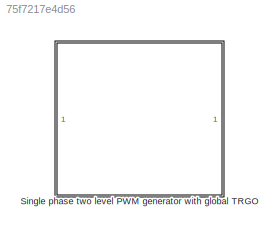
MODEL slx_75f7217e4d56
KIND library
CONFIG AbsTol = auto
CONFIG EnableMultiTasking = off
CONFIG FixedStep = auto
CONFIG MaxStep = auto
CONFIG MinStep = auto
CONFIG RelTol = 1e-3
CONFIG SampleTimeConstraint = Unconstrained
CONFIG SolverName = VariableStepAuto
CONFIG StartTime = 0.0
CONFIG StopTime = 10.0
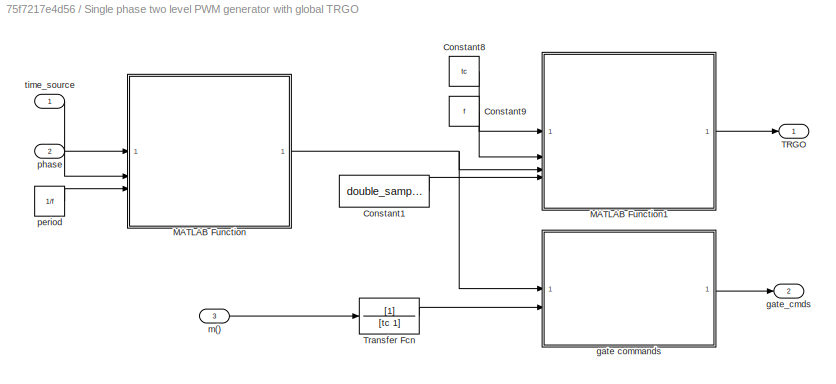
BLOCK [SubSystem] Single phase two level PWM generator with global TRGO
BLOCK [Constant] Single phase two level PWM generator with global TRGO/Constant1
  Value = double_sampling
BLOCK [Constant] Single phase two level PWM generator with global TRGO/Constant8
  Value = tc
BLOCK [Constant] Single phase two level PWM generator with global TRGO/Constant9
  Value = f
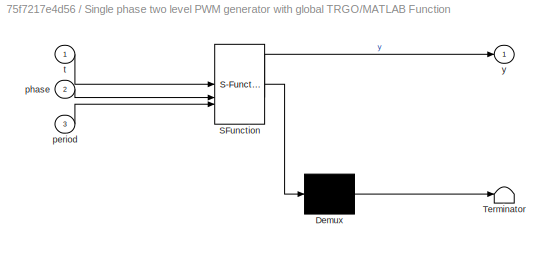
BLOCK [SubSystem] Single phase two level PWM generator with global TRGO/MATLAB Function
  ErrorFcn = Stateflow.Translate.translate
  PermitHierarchicalResolution = ExplicitOnly
  SFBlockType = MATLAB Function
  SystemSampleTime = tc
  TreatAsAtomicUnit = on
BLOCK [Demux] Single phase two level PWM generator with global TRGO/MATLAB Function/ Demux 
  Outputs = 1
BLOCK [S-Function] Single phase two level PWM generator with global TRGO/MATLAB Function/ SFunction 
  EnableBusSupport = off
  FunctionName = sf_sfun
  PortCounts = [3 2]
  SFcnIsStateOwnerBlock = off
  SFunctionDeploymentMode = off
  Tag = Stateflow S-Function 46
BLOCK [Terminator] Single phase two level PWM generator with global TRGO/MATLAB Function/ Terminator 
BLOCK [Inport] Single phase two level PWM generator with global TRGO/MATLAB Function/period
  Port = 3
BLOCK [Inport] Single phase two level PWM generator with global TRGO/MATLAB Function/phase
  Port = 2
BLOCK [Inport] Single phase two level PWM generator with global TRGO/MATLAB Function/t
BLOCK [Outport] Single phase two level PWM generator with global TRGO/MATLAB Function/y
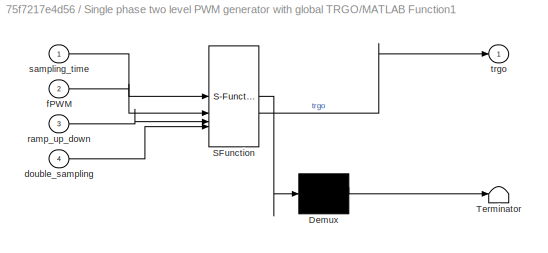
BLOCK [SubSystem] Single phase two level PWM generator with global TRGO/MATLAB Function1
  ErrorFcn = Stateflow.Translate.translate
  PermitHierarchicalResolution = ExplicitOnly
  SFBlockType = MATLAB Function
  SystemSampleTime = tc
  TreatAsAtomicUnit = on
BLOCK [Demux] Single phase two level PWM generator with global TRGO/MATLAB Function1/ Demux 
  Outputs = 1
BLOCK [S-Function] Single phase two level PWM generator with global TRGO/MATLAB Function1/ SFunction 
  EnableBusSupport = off
  FunctionName = sf_sfun
  PortCounts = [4 2]
  SFcnIsStateOwnerBlock = off
  SFunctionDeploymentMode = off
  Tag = Stateflow S-Function 1
BLOCK [Terminator] Single phase two level PWM generator with global TRGO/MATLAB Function1/ Terminator 
BLOCK [Inport] Single phase two level PWM generator with global TRGO/MATLAB Function1/double_sampling
  Port = 4
BLOCK [Inport] Single phase two level PWM generator with global TRGO/MATLAB Function1/fPWM
  Port = 2
BLOCK [Inport] Single phase two level PWM generator with global TRGO/MATLAB Function1/ramp_up_down
  Port = 3
BLOCK [Inport] Single phase two level PWM generator with global TRGO/MATLAB Function1/sampling_time
BLOCK [Outport] Single phase two level PWM generator with global TRGO/MATLAB Function1/trgo
BLOCK [Outport] Single phase two level PWM generator with global TRGO/TRGO
BLOCK [TransferFcn] Single phase two level PWM generator with global TRGO/Transfer Fcn
  Denominator = [tc 1]
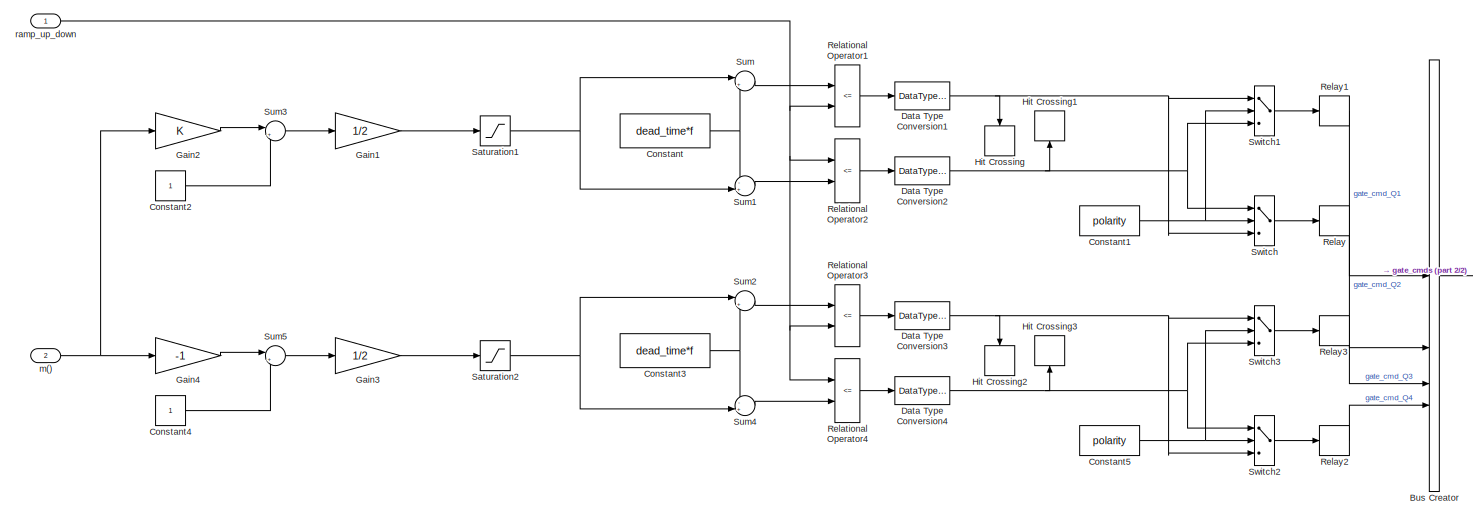
[diagram: Single phase two level PWM generator with global TRGO/gate commands - part 1/2, most of the canvas]
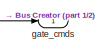
[diagram: Single phase two level PWM generator with global TRGO/gate commands - part 2/2, middle right region]
BLOCK [SubSystem] Single phase two level PWM generator with global TRGO/gate commands
BLOCK [BusCreator] Single phase two level PWM generator with global TRGO/gate commands/Bus Creator
  DisplayOption = bar
  InheritFromInputs = on
  Inputs = 4
BLOCK [Constant] Single phase two level PWM generator with global TRGO/gate commands/Constant
  Value = dead_time*f
BLOCK [Constant] Single phase two level PWM generator with global TRGO/gate commands/Constant1
  Value = polarity
BLOCK [Constant] Single phase two level PWM generator with global TRGO/gate commands/Constant2
BLOCK [Constant] Single phase two level PWM generator with global TRGO/gate commands/Constant3
  Value = dead_time*f
BLOCK [Constant] Single phase two level PWM generator with global TRGO/gate commands/Constant4
BLOCK [Constant] Single phase two level PWM generator with global TRGO/gate commands/Constant5
  Value = polarity
BLOCK [DataTypeConversion] Single phase two level PWM generator with global TRGO/gate commands/Data Type Conversion1
BLOCK [DataTypeConversion] Single phase two level PWM generator with global TRGO/gate commands/Data Type Conversion2
BLOCK [DataTypeConversion] Single phase two level PWM generator with global TRGO/gate commands/Data Type Conversion3
BLOCK [DataTypeConversion] Single phase two level PWM generator with global TRGO/gate commands/Data Type Conversion4
BLOCK [Gain] Single phase two level PWM generator with global TRGO/gate commands/Gain1
  Gain = 1/2
BLOCK [Gain] Single phase two level PWM generator with global TRGO/gate commands/Gain2
BLOCK [Gain] Single phase two level PWM generator with global TRGO/gate commands/Gain3
  Gain = 1/2
BLOCK [Gain] Single phase two level PWM generator with global TRGO/gate commands/Gain4
  Gain = -1
BLOCK [HitCross] Single phase two level PWM generator with global TRGO/gate commands/Hit Crossing
  NameLocation = left
  ShowOutputPort = off
BLOCK [HitCross] Single phase two level PWM generator with global TRGO/gate commands/Hit Crossing1
  NameLocation = right
  ShowOutputPort = off
BLOCK [HitCross] Single phase two level PWM generator with global TRGO/gate commands/Hit Crossing2
  NameLocation = left
  ShowOutputPort = off
BLOCK [HitCross] Single phase two level PWM generator with global TRGO/gate commands/Hit Crossing3
  NameLocation = right
  ShowOutputPort = off
BLOCK [RelationalOperator] Single phase two level PWM generator with global TRGO/gate commands/Relational Operator1
  InputSameDT = off
  Operator = <=
BLOCK [RelationalOperator] Single phase two level PWM generator with global TRGO/gate commands/Relational Operator2
  InputSameDT = off
  Operator = <=
BLOCK [RelationalOperator] Single phase two level PWM generator with global TRGO/gate commands/Relational Operator3
  InputSameDT = off
  Operator = <=
BLOCK [RelationalOperator] Single phase two level PWM generator with global TRGO/gate commands/Relational Operator4
  InputSameDT = off
  Operator = <=
BLOCK [Relay] Single phase two level PWM generator with global TRGO/gate commands/Relay
  OffOutputValue = neg_cmd_gate
  OnOutputValue = pos_cmd_gate
BLOCK [Relay] Single phase two level PWM generator with global TRGO/gate commands/Relay1
  OffOutputValue = neg_cmd_gate
  OnOutputValue = pos_cmd_gate
BLOCK [Relay] Single phase two level PWM generator with global TRGO/gate commands/Relay2
  OffOutputValue = neg_cmd_gate
  OnOutputValue = pos_cmd_gate
BLOCK [Relay] Single phase two level PWM generator with global TRGO/gate commands/Relay3
  OffOutputValue = neg_cmd_gate
  OnOutputValue = pos_cmd_gate
BLOCK [Saturate] Single phase two level PWM generator with global TRGO/gate commands/Saturation1
  LowerLimit = m_low
  UpperLimit = m_up
BLOCK [Saturate] Single phase two level PWM generator with global TRGO/gate commands/Saturation2
  LowerLimit = m_low
  UpperLimit = m_up
BLOCK [Sum] Single phase two level PWM generator with global TRGO/gate commands/Sum
  Inputs = |++
  SaturateOnIntegerOverflow = on
BLOCK [Sum] Single phase two level PWM generator with global TRGO/gate commands/Sum1
  Inputs = -+|
  SaturateOnIntegerOverflow = on
BLOCK [Sum] Single phase two level PWM generator with global TRGO/gate commands/Sum2
  Inputs = |++
  SaturateOnIntegerOverflow = on
BLOCK [Sum] Single phase two level PWM generator with global TRGO/gate commands/Sum3
  Inputs = |++
BLOCK [Sum] Single phase two level PWM generator with global TRGO/gate commands/Sum4
  Inputs = -+|
  SaturateOnIntegerOverflow = on
BLOCK [Sum] Single phase two level PWM generator with global TRGO/gate commands/Sum5
  Inputs = |++
BLOCK [Switch] Single phase two level PWM generator with global TRGO/gate commands/Switch
  Criteria = u2 > Threshold
  InputSameDT = off
  SaturateOnIntegerOverflow = off
BLOCK [Switch] Single phase two level PWM generator with global TRGO/gate commands/Switch1
  Criteria = u2 > Threshold
  InputSameDT = off
  SaturateOnIntegerOverflow = off
BLOCK [Switch] Single phase two level PWM generator with global TRGO/gate commands/Switch2
  Criteria = u2 > Threshold
  InputSameDT = off
  SaturateOnIntegerOverflow = off
BLOCK [Switch] Single phase two level PWM generator with global TRGO/gate commands/Switch3
  Criteria = u2 > Threshold
  InputSameDT = off
  SaturateOnIntegerOverflow = off
BLOCK [Outport] Single phase two level PWM generator with global TRGO/gate commands/gate_cmds
BLOCK [Inport] Single phase two level PWM generator with global TRGO/gate commands/m()
  Port = 2
BLOCK [Inport] Single phase two level PWM generator with global TRGO/gate commands/ramp_up_down
BLOCK [Outport] Single phase two level PWM generator with global TRGO/gate_cmds
  Port = 2
BLOCK [Inport] Single phase two level PWM generator with global TRGO/m()
  Port = 3
BLOCK [Constant] Single phase two level PWM generator with global TRGO/period
  Value = 1/f
BLOCK [Inport] Single phase two level PWM generator with global TRGO/phase
  Port = 2
BLOCK [Inport] Single phase two level PWM generator with global TRGO/time_source
LINE Single phase two level PWM generator with global TRGO/Constant1:1 -> Single phase two level PWM generator with global TRGO/MATLAB Function1:4
LINE Single phase two level PWM generator with global TRGO/Constant8:1 -> Single phase two level PWM generator with global TRGO/MATLAB Function1:1
LINE Single phase two level PWM generator with global TRGO/Constant9:1 -> Single phase two level PWM generator with global TRGO/MATLAB Function1:2
LINE Single phase two level PWM generator with global TRGO/MATLAB Function1:1 -> Single phase two level PWM generator with global TRGO/TRGO:1
NET Single phase two level PWM generator with global TRGO/MATLAB Function:1 -> Single phase two level PWM generator with global TRGO/MATLAB Function1:3, Single phase two level PWM generator with global TRGO/gate commands:1
LINE Single phase two level PWM generator with global TRGO/Transfer Fcn:1 -> Single phase two level PWM generator with global TRGO/gate commands:2
LINE Single phase two level PWM generator with global TRGO/gate commands/Bus Creator:1 -> Single phase two level PWM generator with global TRGO/gate commands/gate_cmds:1
NET Single phase two level PWM generator with global TRGO/gate commands/Constant1:1 -> Single phase two level PWM generator with global TRGO/gate commands/Switch1:2, Single phase two level PWM generator with global TRGO/gate commands/Switch:2
LINE Single phase two level PWM generator with global TRGO/gate commands/Constant2:1 -> Single phase two level PWM generator with global TRGO/gate commands/Sum3:2
NET Single phase two level PWM generator with global TRGO/gate commands/Constant3:1 -> Single phase two level PWM generator with global TRGO/gate commands/Sum2:2, Single phase two level PWM generator with global TRGO/gate commands/Sum4:1
LINE Single phase two level PWM generator with global TRGO/gate commands/Constant4:1 -> Single phase two level PWM generator with global TRGO/gate commands/Sum5:2
NET Single phase two level PWM generator with global TRGO/gate commands/Constant5:1 -> Single phase two level PWM generator with global TRGO/gate commands/Switch2:2, Single phase two level PWM generator with global TRGO/gate commands/Switch3:2
NET Single phase two level PWM generator with global TRGO/gate commands/Constant:1 -> Single phase two level PWM generator with global TRGO/gate commands/Sum1:1, Single phase two level PWM generator with global TRGO/gate commands/Sum:2
NET Single phase two level PWM generator with global TRGO/gate commands/Data Type Conversion1:1 -> Single phase two level PWM generator with global TRGO/gate commands/Hit Crossing:1, Single phase two level PWM generator with global TRGO/gate commands/Switch1:1, Single phase two level PWM generator with global TRGO/gate commands/Switch:3
NET Single phase two level PWM generator with global TRGO/gate commands/Data Type Conversion2:1 -> Single phase two level PWM generator with global TRGO/gate commands/Hit Crossing1:1, Single phase two level PWM generator with global TRGO/gate commands/Switch1:3, Single phase two level PWM generator with global TRGO/gate commands/Switch:1
NET Single phase two level PWM generator with global TRGO/gate commands/Data Type Conversion3:1 -> Single phase two level PWM generator with global TRGO/gate commands/Hit Crossing2:1, Single phase two level PWM generator with global TRGO/gate commands/Switch2:3, Single phase two level PWM generator with global TRGO/gate commands/Switch3:1
NET Single phase two level PWM generator with global TRGO/gate commands/Data Type Conversion4:1 -> Single phase two level PWM generator with global TRGO/gate commands/Hit Crossing3:1, Single phase two level PWM generator with global TRGO/gate commands/Switch2:1, Single phase two level PWM generator with global TRGO/gate commands/Switch3:3
LINE Single phase two level PWM generator with global TRGO/gate commands/Gain1:1 -> Single phase two level PWM generator with global TRGO/gate commands/Saturation1:1
LINE Single phase two level PWM generator with global TRGO/gate commands/Gain2:1 -> Single phase two level PWM generator with global TRGO/gate commands/Sum3:1
LINE Single phase two level PWM generator with global TRGO/gate commands/Gain3:1 -> Single phase two level PWM generator with global TRGO/gate commands/Saturation2:1
LINE Single phase two level PWM generator with global TRGO/gate commands/Gain4:1 -> Single phase two level PWM generator with global TRGO/gate commands/Sum5:1
LINE Single phase two level PWM generator with global TRGO/gate commands/Relational Operator1:1 -> Single phase two level PWM generator with global TRGO/gate commands/Data Type Conversion1:1
LINE Single phase two level PWM generator with global TRGO/gate commands/Relational Operator2:1 -> Single phase two level PWM generator with global TRGO/gate commands/Data Type Conversion2:1
LINE Single phase two level PWM generator with global TRGO/gate commands/Relational Operator3:1 -> Single phase two level PWM generator with global TRGO/gate commands/Data Type Conversion3:1
LINE Single phase two level PWM generator with global TRGO/gate commands/Relational Operator4:1 -> Single phase two level PWM generator with global TRGO/gate commands/Data Type Conversion4:1
LINE Single phase two level PWM generator with global TRGO/gate commands/Relay1:1 -> Single phase two level PWM generator with global TRGO/gate commands/Bus Creator:1
LINE Single phase two level PWM generator with global TRGO/gate commands/Relay2:1 -> Single phase two level PWM generator with global TRGO/gate commands/Bus Creator:4
LINE Single phase two level PWM generator with global TRGO/gate commands/Relay3:1 -> Single phase two level PWM generator with global TRGO/gate commands/Bus Creator:3
LINE Single phase two level PWM generator with global TRGO/gate commands/Relay:1 -> Single phase two level PWM generator with global TRGO/gate commands/Bus Creator:2
NET Single phase two level PWM generator with global TRGO/gate commands/Saturation1:1 -> Single phase two level PWM generator with global TRGO/gate commands/Sum1:2, Single phase two level PWM generator with global TRGO/gate commands/Sum:1
NET Single phase two level PWM generator with global TRGO/gate commands/Saturation2:1 -> Single phase two level PWM generator with global TRGO/gate commands/Sum2:1, Single phase two level PWM generator with global TRGO/gate commands/Sum4:2
LINE Single phase two level PWM generator with global TRGO/gate commands/Sum1:1 -> Single phase two level PWM generator with global TRGO/gate commands/Relational Operator2:2
LINE Single phase two level PWM generator with global TRGO/gate commands/Sum2:1 -> Single phase two level PWM generator with global TRGO/gate commands/Relational Operator3:1
LINE Single phase two level PWM generator with global TRGO/gate commands/Sum3:1 -> Single phase two level PWM generator with global TRGO/gate commands/Gain1:1
LINE Single phase two level PWM generator with global TRGO/gate commands/Sum4:1 -> Single phase two level PWM generator with global TRGO/gate commands/Relational Operator4:2
LINE Single phase two level PWM generator with global TRGO/gate commands/Sum5:1 -> Single phase two level PWM generator with global TRGO/gate commands/Gain3:1
LINE Single phase two level PWM generator with global TRGO/gate commands/Sum:1 -> Single phase two level PWM generator with global TRGO/gate commands/Relational Operator1:1
LINE Single phase two level PWM generator with global TRGO/gate commands/Switch1:1 -> Single phase two level PWM generator with global TRGO/gate commands/Relay1:1
LINE Single phase two level PWM generator with global TRGO/gate commands/Switch2:1 -> Single phase two level PWM generator with global TRGO/gate commands/Relay2:1
LINE Single phase two level PWM generator with global TRGO/gate commands/Switch3:1 -> Single phase two level PWM generator with global TRGO/gate commands/Relay3:1
LINE Single phase two level PWM generator with global TRGO/gate commands/Switch:1 -> Single phase two level PWM generator with global TRGO/gate commands/Relay:1
NET Single phase two level PWM generator with global TRGO/gate commands/m():1 -> Single phase two level PWM generator with global TRGO/gate commands/Gain2:1, Single phase two level PWM generator with global TRGO/gate commands/Gain4:1
NET Single phase two level PWM generator with global TRGO/gate commands/ramp_up_down:1 -> Single phase two level PWM generator with global TRGO/gate commands/Relational Operator1:2, Single phase two level PWM generator with global TRGO/gate commands/Relational Operator2:1, Single phase two level PWM generator with global TRGO/gate commands/Relational Operator3:2, Single phase two level PWM generator with global TRGO/gate commands/Relational Operator4:1
LINE Single phase two level PWM generator with global TRGO/gate commands:1 -> Single phase two level PWM generator with global TRGO/gate_cmds:1
LINE Single phase two level PWM generator with global TRGO/m():1 -> Single phase two level PWM generator with global TRGO/Transfer Fcn:1
LINE Single phase two level PWM generator with global TRGO/period:1 -> Single phase two level PWM generator with global TRGO/MATLAB Function:3
LINE Single phase two level PWM generator with global TRGO/phase:1 -> Single phase two level PWM generator with global TRGO/MATLAB Function:2
LINE Single phase two level PWM generator with global TRGO/time_source:1 -> Single phase two level PWM generator with global TRGO/MATLAB Function:1
note: NET lines group one-source signal fan-out (src -> all destinations, sorted); 1:1 wires keep LINE
CHART Single phase two level PWM generator with global TRGO/MATLAB Function1 states=1 transitions=1
  STATE_LABEL 'eML_blk_kernel()'
  STATE_LABEL 'SCRIPT:\nfunction trgo = trgo_gen(sampling_time,fPWM, ramp_up_down, double_sampling)\n\nth = fPWM*sampling_time*2;\n\nif double_sampling\n    if (((ramp_up_down >= 0) && (ramp_up_down <= th)) || ...\n            ((ramp_up_down <= 1) && (ramp_up_down >= 1-th)))\n        trgo = 1;\n    else\n        trgo = 0;\n    end\nelse\n    if ((ramp_up_down >= 0) && (ramp_up_down <= th))\n        trgo = 1;\n    else\n        ...<+22ch>'
CHART Single phase two level PWM generator with global TRGO/MATLAB Function states=1 transitions=1
  STATE_LABEL 'eML_blk_kernel()'
  STATE_LABEL 'SCRIPT:\nfunction y = ramp_up_down(t,phase,period)\nx = sin(2*pi/period*t - phase -pi/2);\ny = asin(x)/pi + 1/2;\n'
CHART  states=0 transitions=0
CHART  states=0 transitions=0
